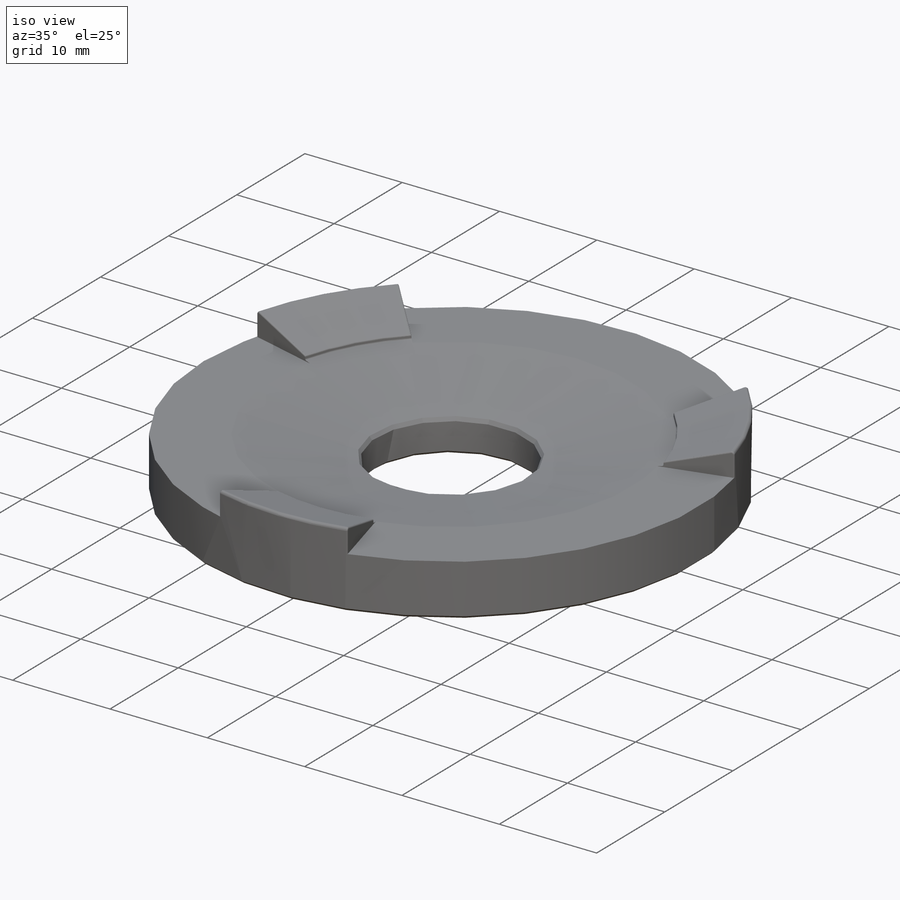
[diagram: iso view]
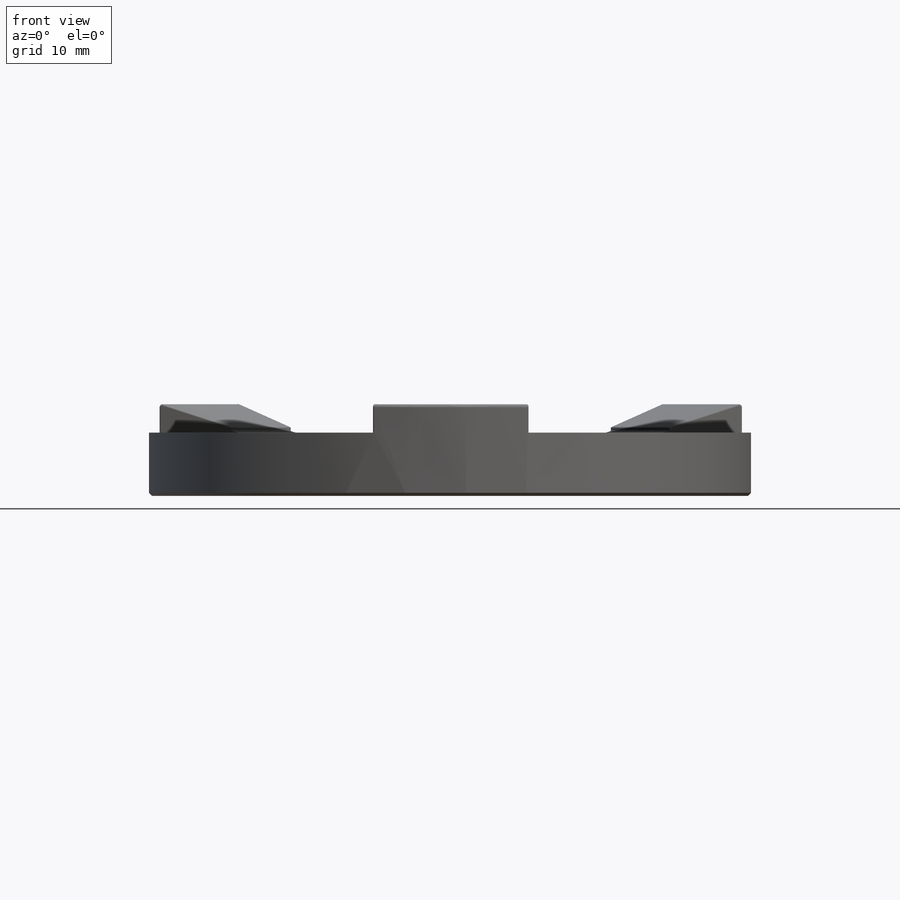
[diagram: front view]
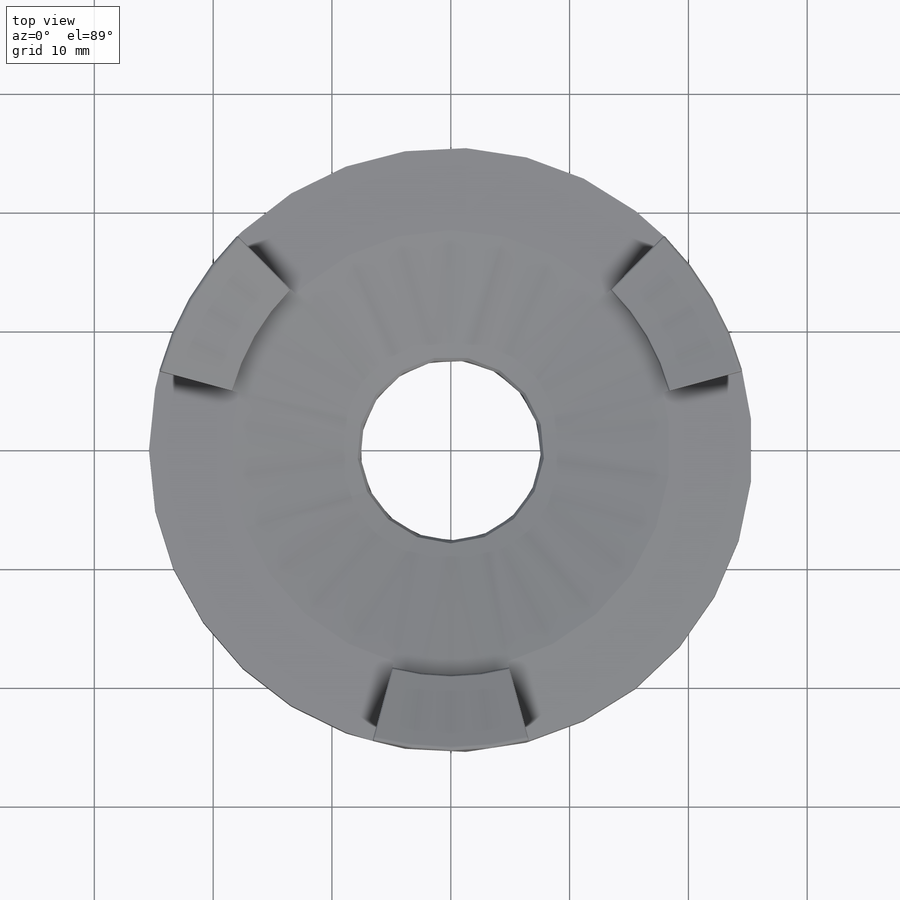
[diagram: top view]
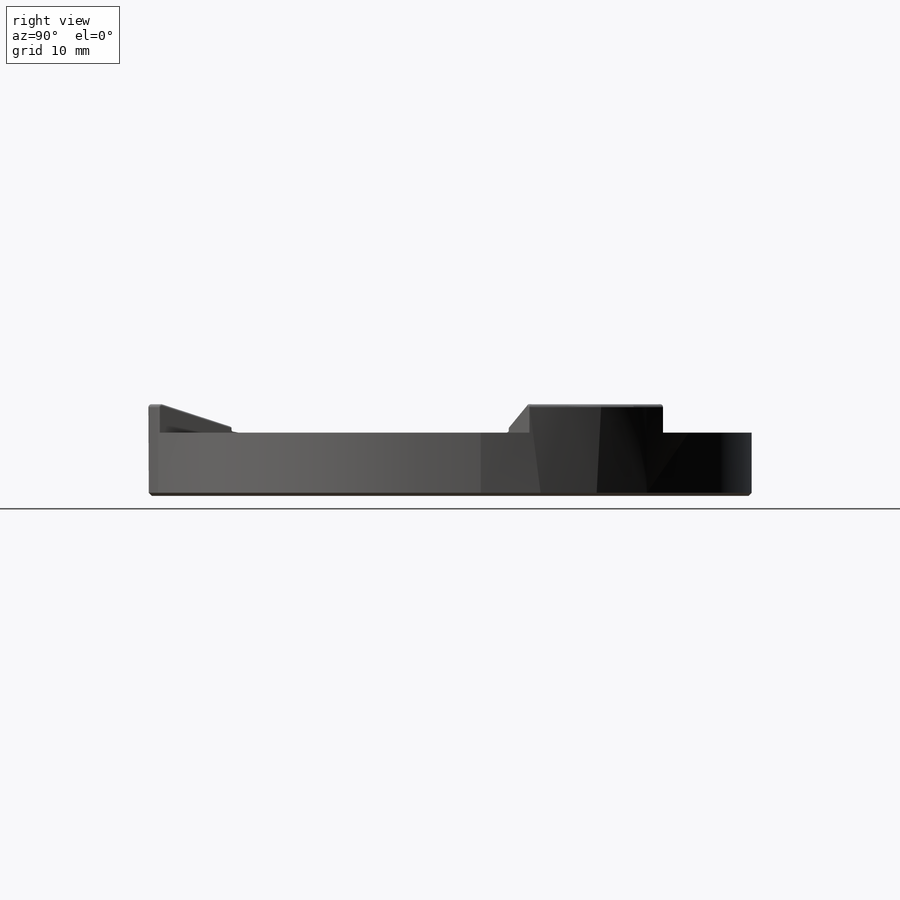
[diagram: right view]
SOLIDWORKS PART (.sldprt)
format: sldprt  version: not decoded by parser v0  size: 315,904 bytes
history: native  units: mm
features: sketch x3, fillet x2, material x1, revolve x1, cut_revolve x1, chamfer x1, cut_extrude x1, pattern_circular x1 + 1 further entry (+13 scaffold rows collapsed)
feature tree (25):
  scaffold x13  (default folders/planes/origin — collapsed)
  material  "304 SSTL"
  "Origin"  ID=-1
  sketch  "Sketch1"  dims[c1.D1=147.2946mm c1.D5=76.2mm c2.D1=~12.243987mm c2.D2=7.62mm c2.D3=25.4mm c2.D4=3.302mm]
  revolve  "Revolve1"  Angle=360deg
  sketch  "Sketch4"  dims[D1=147.2946mm D2=0.381mm D3=0.381mm D4=7.62mm D5=11.43mm D6=19.05mm]
  cut_revolve  "Cut-Revolve2"  Angle=360deg
  fillet  "Fillet1"  Radius=0.254mm
  chamfer  "Chamfer1"  Distance=0.254mm Angle=45deg
  sketch  "Sketch5"  dims[c1.D1=20.32mm c1.D2=25.4mm c2.D1=~25.480174mm c3.D1=90.0deg c3.D2=27.94mm]
  cut_extrude  "Extrude1"  Depth=71.628mm
  pattern_circular  "CirPattern1"  Count=3 Angle=360deg
  fillet  "Fillet4"  Radius=0.127mm
decode coverage: 10 of 10 modeling features carry decoded parameters; 1 rows unclassified (native names shown)
note: ~ marks probable driven/reference dimensions
note: suppression state not decoded; provenance and decode notes live in map.json
